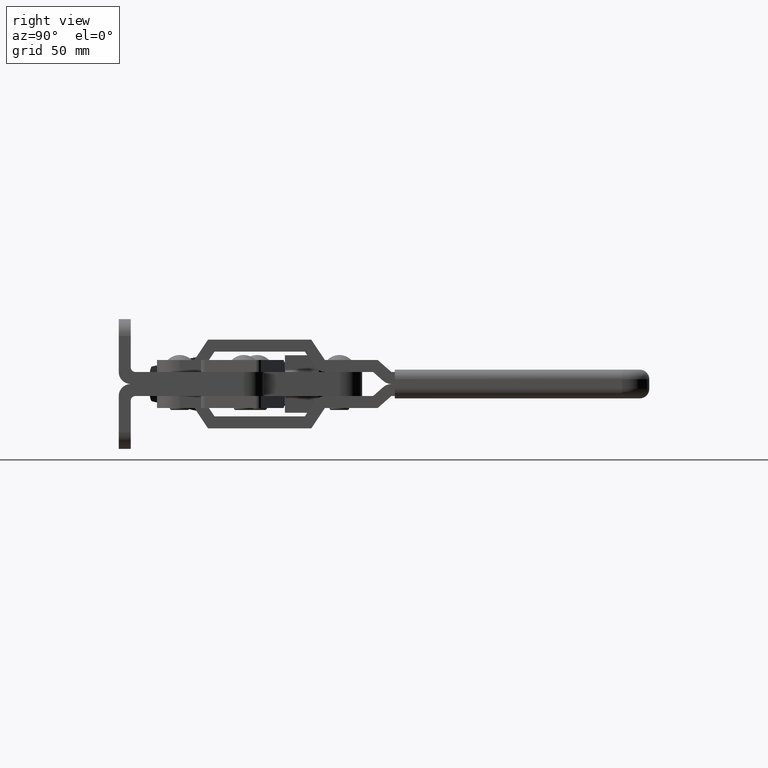
[diagram: clean part render]
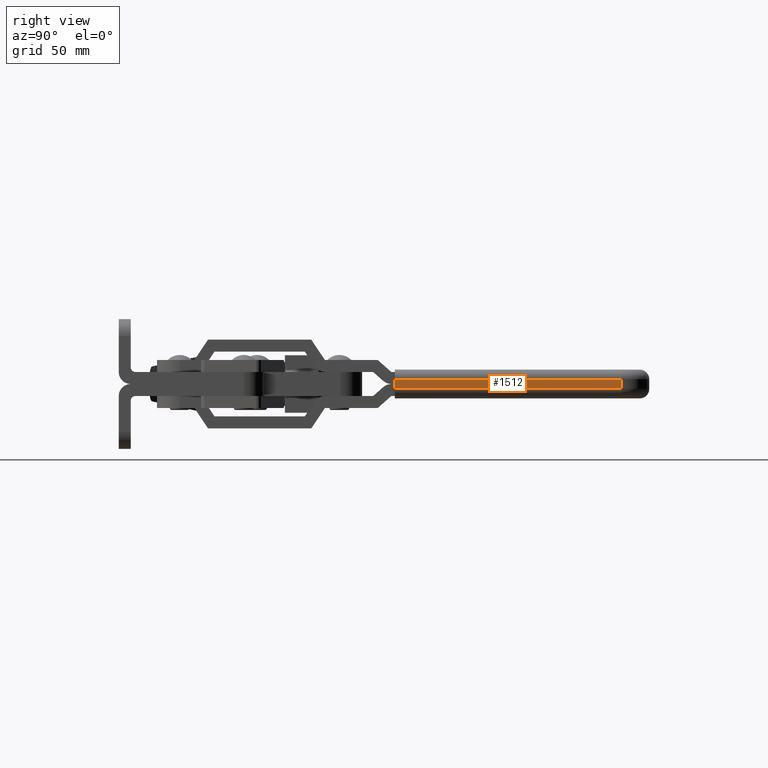
[diagram: same view with one face highlighted and labeled with its STEP entity id]
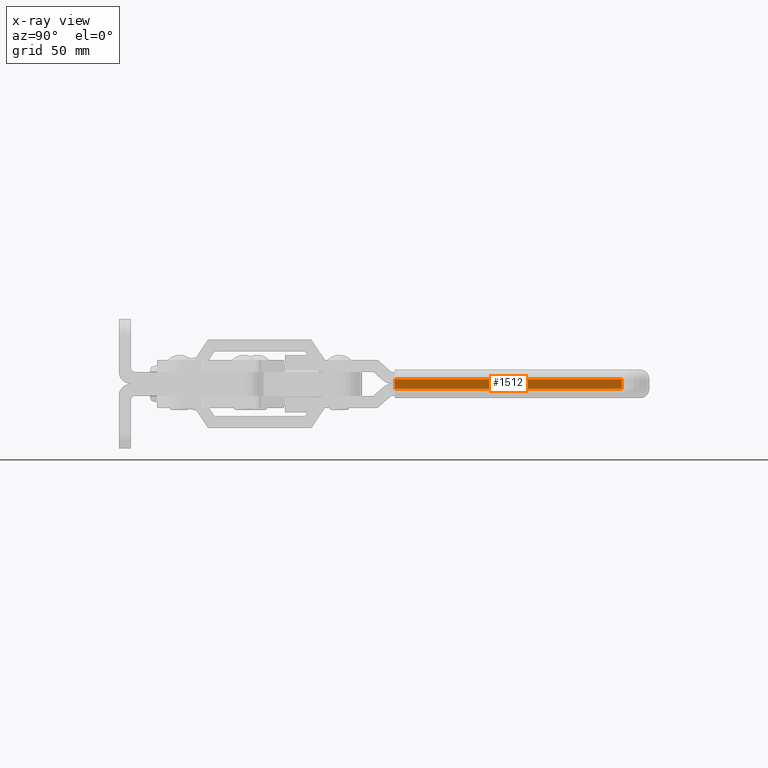
[diagram: x-ray of the same camera — body ghosted, the highlighted face saturated]
A machine part, right view. The second image highlights one B-rep face of the part: STEP entity #1512.
The next image is the same camera in x-ray: the body ghosted, the highlighted face saturated — about 0% of this face is hidden behind the body in this view.
In plain terms, the highlighted planar face has unit normal (1, 0.001, -0).
Its self-contained STEP definition (entity closure, byte-faithful):
#91 = VECTOR ( 'NONE', #3532, 1000.000000000000000 ) ;
#572 = LINE ( 'NONE', #5059, #4697 ) ;
#878 = CARTESIAN_POINT ( 'NONE',  ( 23.10952362236663800, 115.0239161378092800, 1.999959036092921600 ) ) ;
#1512 = ADVANCED_FACE ( 'NONE', ( #4276 ), #5352, .T. ) ;
#2159 = DIRECTION ( 'NONE',  ( -4.368380015254403700E-010, 4.326966350765218800E-007, -0.9999999999999063000 ) ) ;
#2254 = ORIENTED_EDGE ( 'NONE', *, *, #4791, .T. ) ;
#2689 = CARTESIAN_POINT ( 'NONE',  ( 23.10952362061928500, 115.0239178685958300, -2.000040963906701800 ) ) ;
#3234 = EDGE_CURVE ( 'NONE', #9432, #5995, #572, .T. ) ;
#3292 = LINE ( 'NONE', #878, #7715 ) ;
#3532 = DIRECTION ( 'NONE',  ( -0.001009559314342328800, 0.9999994903947719800, 4.326968555859678900E-007 ) ) ;
#3856 = CARTESIAN_POINT ( 'NONE',  ( 23.10952362061928500, 115.0239178685958300, -2.000040963906701800 ) ) ;
#4276 = FACE_OUTER_BOUND ( 'NONE', #8104, .T. ) ;
#4697 = VECTOR ( 'NONE', #2159, 1000.000000000000100 ) ;
#4791 = EDGE_CURVE ( 'NONE', #9432, #5818, #3292, .T. ) ;
#4837 = ORIENTED_EDGE ( 'NONE', *, *, #3234, .F. ) ;
#5059 = CARTESIAN_POINT ( 'NONE',  ( 23.01413274180815100, 209.5115114594993300, 5.999999920599520900 ) ) ;
#5271 = ORIENTED_EDGE ( 'NONE', *, *, #6428, .T. ) ;
#5352 = PLANE ( 'NONE',  #8875 ) ;
#5818 = VERTEX_POINT ( 'NONE', #9852 ) ;
#5905 = DIRECTION ( 'NONE',  ( -0.001009559314342423300, 0.9999994903948655800, 8.327380641554837700E-015 ) ) ;
#5948 = LINE ( 'NONE', #7406, #10281 ) ;
#5995 = VERTEX_POINT ( 'NONE', #6880 ) ;
#6007 = CARTESIAN_POINT ( 'NONE',  ( 23.10952362411399700, 115.0239144070227900, 5.999959036092546300 ) ) ;
#6072 = DIRECTION ( 'NONE',  ( 0.9999994903948655800, 0.001009559314342423300, -4.860684398261361500E-015 ) ) ;
#6428 = EDGE_CURVE ( 'NONE', #5818, #8447, #5948, .T. ) ;
#6880 = CARTESIAN_POINT ( 'NONE',  ( 23.01413273831343900, 209.5115149210724000, -2.000000079399733500 ) ) ;
#6978 = LINE ( 'NONE', #2689, #91 ) ;
#7406 = CARTESIAN_POINT ( 'NONE',  ( 23.10952362411399700, 115.0239144070227900, 5.999959036092546300 ) ) ;
#7660 = EDGE_CURVE ( 'NONE', #8447, #5995, #6978, .T. ) ;
#7715 = VECTOR ( 'NONE', #7867, 1000.000000000000000 ) ;
#7867 = DIRECTION ( 'NONE',  ( 0.001009559314342328800, -0.9999994903947719800, -4.326968555859678900E-007 ) ) ;
#8104 = EDGE_LOOP ( 'NONE', ( #5271, #9471, #4837, #2254 ) ) ;
#8447 = VERTEX_POINT ( 'NONE', #3856 ) ;
#8875 = AXIS2_PLACEMENT_3D ( 'NONE', #6007, #6072, #5905 ) ;
#9432 = VERTEX_POINT ( 'NONE', #9518 ) ;
#9471 = ORIENTED_EDGE ( 'NONE', *, *, #7660, .T. ) ;
#9518 = CARTESIAN_POINT ( 'NONE',  ( 23.01413274006077000, 209.5115131902858500, 1.999999920599894600 ) ) ;
#9840 = DIRECTION ( 'NONE',  ( -4.368380015254403700E-010, 4.326966350765218800E-007, -0.9999999999999063000 ) ) ;
#9852 = CARTESIAN_POINT ( 'NONE',  ( 23.10952362236663800, 115.0239161378092800, 1.999959036092922900 ) ) ;
#10281 = VECTOR ( 'NONE', #9840, 1000.000000000000100 ) ;